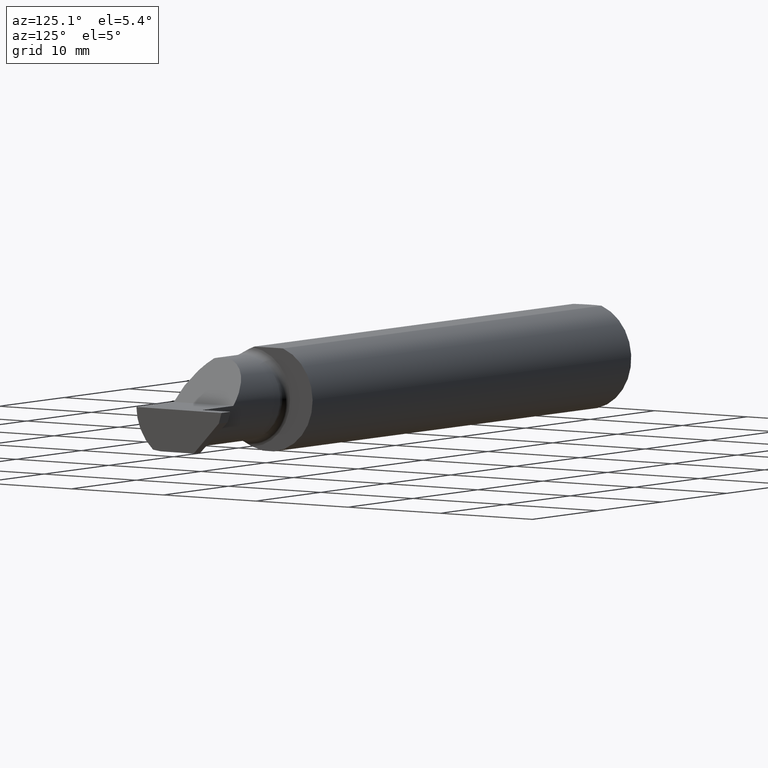
[diagram: clean part render]
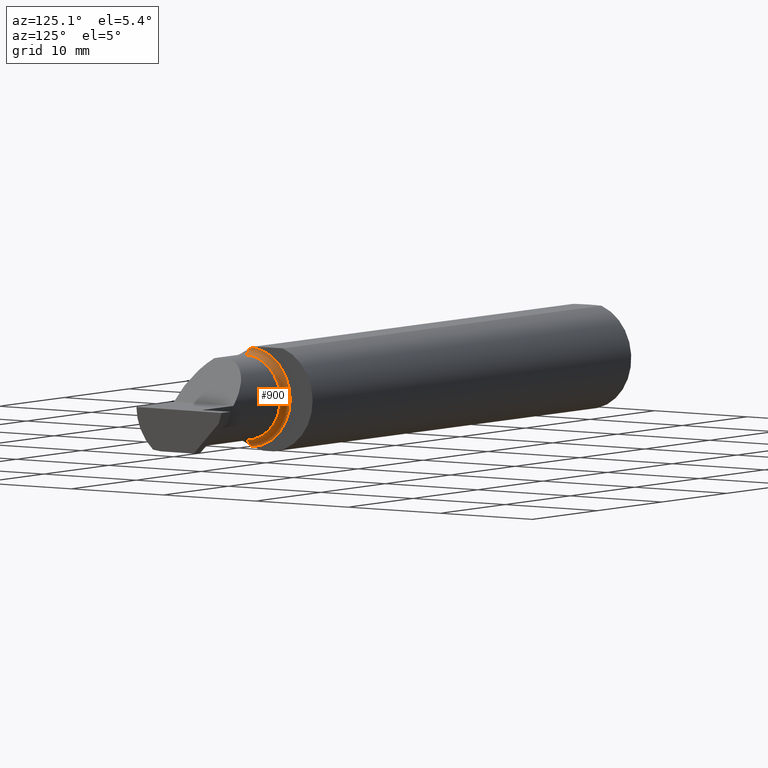
[diagram: same view with one face highlighted and labeled with its STEP entity id]
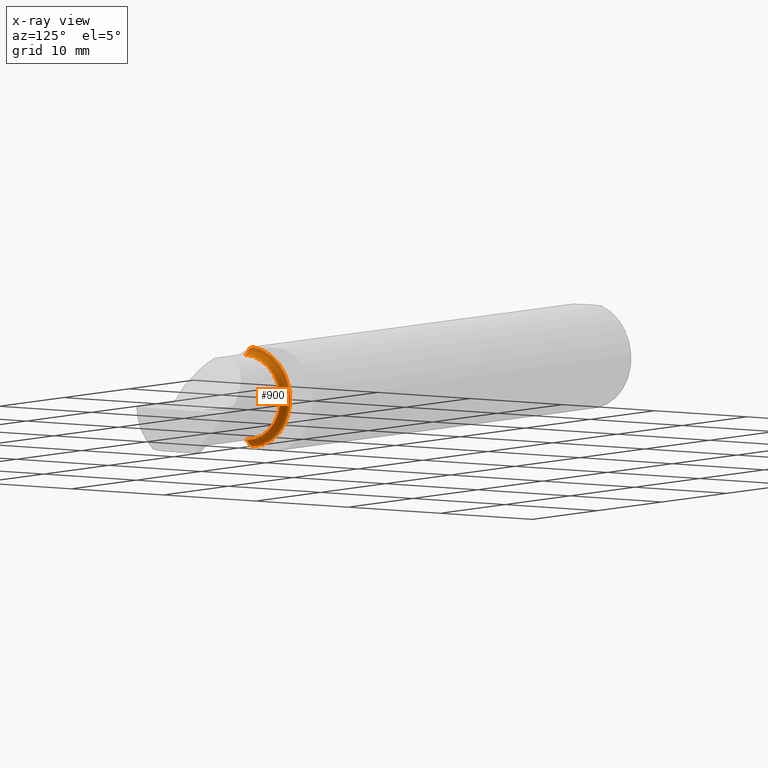
[diagram: x-ray of the same camera — body ghosted, the highlighted face saturated]
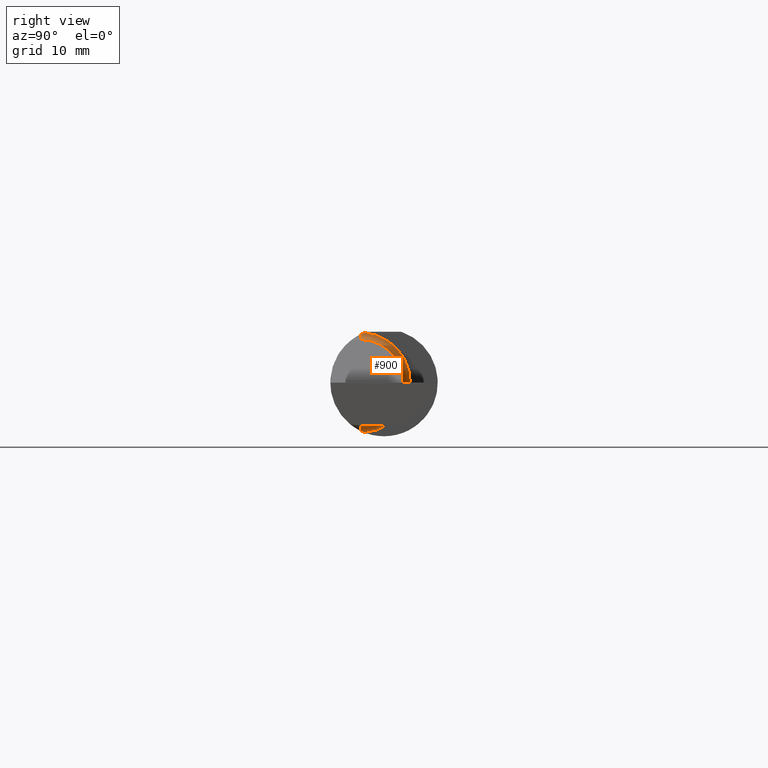
[diagram: same view with one face highlighted and labeled with its STEP entity id]
A machine part, auxiliary view. The second image highlights one B-rep face of the part: STEP entity #900.
The next image is the same camera in x-ray: the body ghosted, the highlighted face saturated — about 0% of this face is hidden behind the body in this view.
A second angle (right view) of the same face is appended — the face is thin or edge-on in the first view.
In plain terms, the highlighted toroidal blend (fillet) surface has major radius 4.445 mm and minor (blend) radius 0.635 mm.
Its self-contained STEP definition (entity closure, byte-faithful):
#6 = CARTESIAN_POINT ( 'NONE',  ( 1.950346246588685162, -0.07856197451716395719, -0.1701664510438046507 ) ) ;
#25 = ORIENTED_EDGE ( 'NONE', *, *, #128, .T. ) ;
#28 = CARTESIAN_POINT ( 'NONE',  ( 1.974999999999999867, -0.08334999999999992415, -0.1749999999999999889 ) ) ;
#37 = CARTESIAN_POINT ( 'NONE',  ( 1.949999999999999956, -0.06851976604679065053, 0.1743704796142198643 ) ) ;
#39 = CARTESIAN_POINT ( 'NONE',  ( 1.974999999999999867, -0.08334999999999995191, -0.1499999999999999667 ) ) ;
#99 = AXIS2_PLACEMENT_3D ( 'NONE', #28, #839, #666 ) ;
#117 = CARTESIAN_POINT ( 'NONE',  ( 1.951062863587533558, -0.08334999999998814191, 0.1677879614275171183 ) ) ;
#125 = EDGE_CURVE ( 'NONE', #588, #299, #796, .T. ) ;
#128 = EDGE_CURVE ( 'NONE', #997, #650, #156, .T. ) ;
#140 = VERTEX_POINT ( 'NONE', #424 ) ;
#156 = B_SPLINE_CURVE_WITH_KNOTS ( 'NONE', 3,
 ( #800, #6, #965, #586 ),
 .UNSPECIFIED., .F., .F.,
 ( 4, 4 ),
 ( 0.001278539404338875510, 0.001694873732696221573 ),
 .UNSPECIFIED. ) ;
#169 = B_SPLINE_CURVE_WITH_KNOTS ( 'NONE', 3,
 ( #834, #590, #277, #117 ),
 .UNSPECIFIED., .F., .F.,
 ( 4, 4 ),
 ( 4.423516731080786679E-05, 0.0004561457252213468741 ),
 .UNSPECIFIED. ) ;
#195 = DIRECTION ( 'NONE',  ( 0.000000000000000000, 0.000000000000000000, 1.000000000000000000 ) ) ;
#219 = EDGE_CURVE ( 'NONE', #140, #588, #867, .T. ) ;
#271 = TOROIDAL_SURFACE ( 'NONE', #405, 0.1749999999999999889, 0.02499999999999994241 ) ;
#274 = EDGE_LOOP ( 'NONE', ( #774, #25, #619, #916, #717, #966 ) ) ;
#277 = CARTESIAN_POINT ( 'NONE',  ( 1.950344683557281300, -0.07855153123406181936, 0.1701716388274757685 ) ) ;
#287 = AXIS2_PLACEMENT_3D ( 'NONE', #509, #667, #195 ) ;
#299 = VERTEX_POINT ( 'NONE', #39 ) ;
#371 = CARTESIAN_POINT ( 'NONE',  ( 1.974999999999999867, -0.08334999999999995191, 0.1749999999999999889 ) ) ;
#405 = AXIS2_PLACEMENT_3D ( 'NONE', #596, #660, #999 ) ;
#424 = CARTESIAN_POINT ( 'NONE',  ( 1.951062863587533558, -0.08334999999998814191, 0.1677879614275171183 ) ) ;
#445 = CARTESIAN_POINT ( 'NONE',  ( 1.974999999999999867, -0.08334999999999996578, 0.1499999999999999667 ) ) ;
#509 = CARTESIAN_POINT ( 'NONE',  ( 1.974999999999999867, -0.08334999999999996578, 0.000000000000000000 ) ) ;
#566 = EDGE_CURVE ( 'NONE', #598, #140, #169, .T. ) ;
#586 = CARTESIAN_POINT ( 'NONE',  ( 1.949999999999999956, -0.06851976604679065053, -0.1743704796142198643 ) ) ;
#587 = AXIS2_PLACEMENT_3D ( 'NONE', #1030, #878, #726 ) ;
#588 = VERTEX_POINT ( 'NONE', #445 ) ;
#590 = CARTESIAN_POINT ( 'NONE',  ( 1.949999999999999512, -0.07360907839729495528, 0.1723706084642000758 ) ) ;
#591 = FACE_OUTER_BOUND ( 'NONE', #274, .T. ) ;
#596 = CARTESIAN_POINT ( 'NONE',  ( 1.974999999999999867, -0.08334999999999995191, 0.000000000000000000 ) ) ;
#598 = VERTEX_POINT ( 'NONE', #37 ) ;
#613 = DIRECTION ( 'NONE',  ( 0.000000000000000000, 0.000000000000000000, -1.000000000000000000 ) ) ;
#619 = ORIENTED_EDGE ( 'NONE', *, *, #848, .F. ) ;
#636 = CIRCLE ( 'NONE', #99, 0.02499999999999993894 ) ;
#650 = VERTEX_POINT ( 'NONE', #863 ) ;
#660 = DIRECTION ( 'NONE',  ( -1.000000000000000000, -0.000000000000000000, -0.000000000000000000 ) ) ;
#666 = DIRECTION ( 'NONE',  ( 0.000000000000000000, 0.000000000000000000, 1.000000000000000000 ) ) ;
#667 = DIRECTION ( 'NONE',  ( -1.000000000000000000, -0.000000000000000000, -0.000000000000000000 ) ) ;
#717 = ORIENTED_EDGE ( 'NONE', *, *, #219, .T. ) ;
#726 = DIRECTION ( 'NONE',  ( 0.000000000000000000, 0.000000000000000000, 1.000000000000000000 ) ) ;
#774 = ORIENTED_EDGE ( 'NONE', *, *, #940, .F. ) ;
#796 = CIRCLE ( 'NONE', #287, 0.1499999999999999667 ) ;
#800 = CARTESIAN_POINT ( 'NONE',  ( 1.951062863587535334, -0.08334999999999985476, -0.1677879614275112619 ) ) ;
#834 = CARTESIAN_POINT ( 'NONE',  ( 1.949999999999999956, -0.06851976604679065053, 0.1743704796142198643 ) ) ;
#839 = DIRECTION ( 'NONE',  ( -0.000000000000000000, 1.000000000000000000, 1.224646799147353207E-16 ) ) ;
#840 = DIRECTION ( 'NONE',  ( 0.000000000000000000, -1.000000000000000000, 0.000000000000000000 ) ) ;
#848 = EDGE_CURVE ( 'NONE', #598, #650, #1040, .T. ) ;
#863 = CARTESIAN_POINT ( 'NONE',  ( 1.949999999999999956, -0.06851976604679065053, -0.1743704796142198643 ) ) ;
#867 = CIRCLE ( 'NONE', #1024, 0.02499999999999993894 ) ;
#878 = DIRECTION ( 'NONE',  ( -1.000000000000000000, -0.000000000000000000, -0.000000000000000000 ) ) ;
#900 = ADVANCED_FACE ( 'NONE', ( #591 ), #271, .F. ) ;
#908 = CARTESIAN_POINT ( 'NONE',  ( 1.951062863587535334, -0.08334999999999985476, -0.1677879614275112619 ) ) ;
#916 = ORIENTED_EDGE ( 'NONE', *, *, #566, .T. ) ;
#940 = EDGE_CURVE ( 'NONE', #997, #299, #636, .T. ) ;
#965 = CARTESIAN_POINT ( 'NONE',  ( 1.949999999999999956, -0.07359296612170562746, -0.1723769398647691520 ) ) ;
#966 = ORIENTED_EDGE ( 'NONE', *, *, #125, .T. ) ;
#997 = VERTEX_POINT ( 'NONE', #908 ) ;
#999 = DIRECTION ( 'NONE',  ( 0.000000000000000000, 0.000000000000000000, 1.000000000000000000 ) ) ;
#1024 = AXIS2_PLACEMENT_3D ( 'NONE', #371, #840, #613 ) ;
#1030 = CARTESIAN_POINT ( 'NONE',  ( 1.949999999999999956, -0.08334999999999996578, 0.000000000000000000 ) ) ;
#1040 = CIRCLE ( 'NONE', #587, 0.1749999999999999889 ) ;